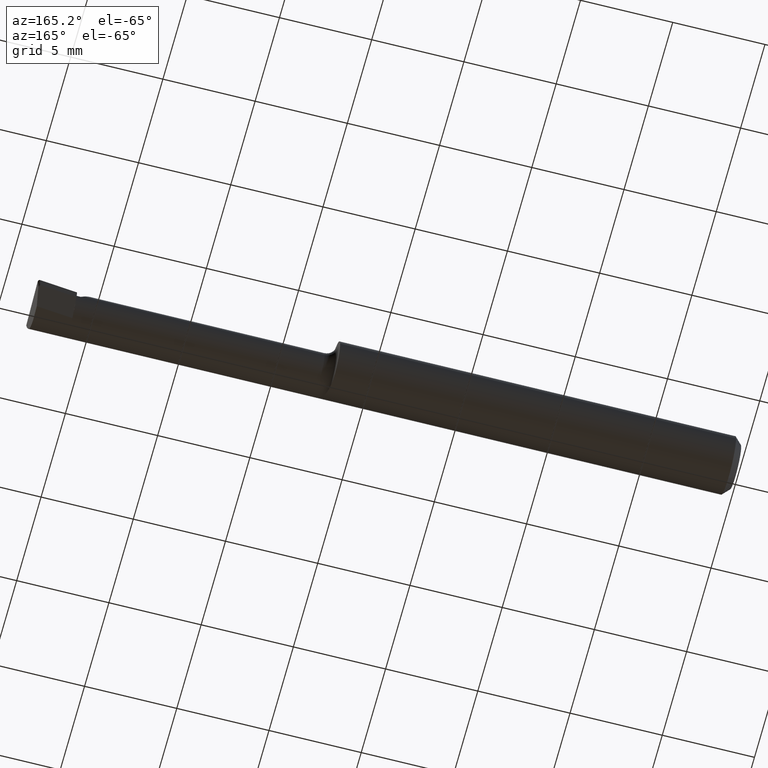
[diagram: clean part render]
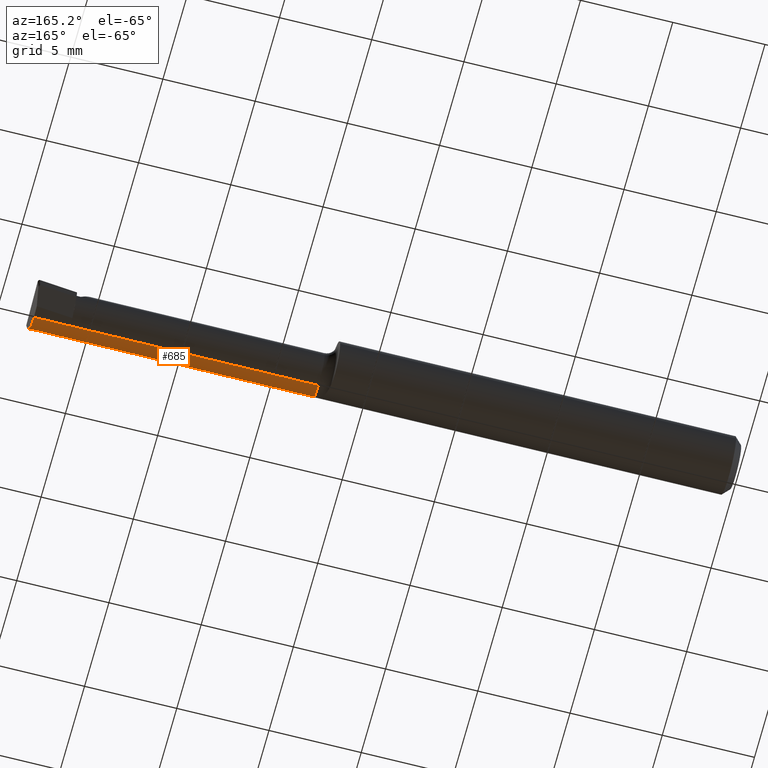
[diagram: same view with one face highlighted and labeled with its STEP entity id]
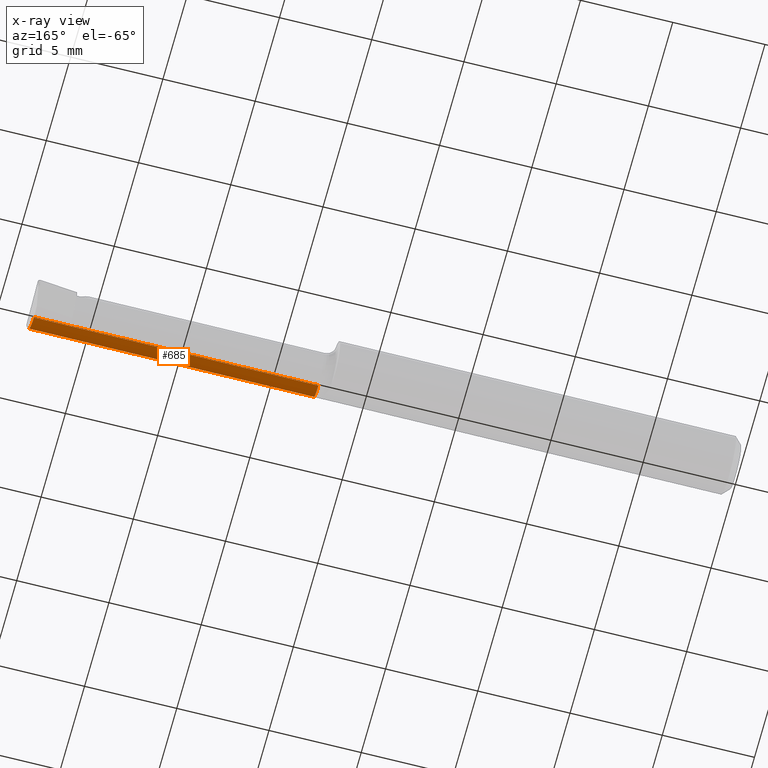
[diagram: x-ray of the same camera — body ghosted, the highlighted face saturated]
A machine part, auxiliary view. The second image highlights one B-rep face of the part: STEP entity #685.
The next image is the same camera in x-ray: the body ghosted, the highlighted face saturated — about 0% of this face is hidden behind the body in this view.
In plain terms, the highlighted cylindrical surface (edge-blend (fillet) strip) has radius 1.2205 mm, axis along (-1, -0, -0).
Its self-contained STEP definition (entity closure, byte-faithful):
#31 = VERTEX_POINT ( 'NONE', #773 ) ;
#34 = CARTESIAN_POINT ( 'NONE',  ( 0.0000000000000000000, -0.01839999999999999275, -0.04804999999999996774 ) ) ;
#40 = CARTESIAN_POINT ( 'NONE',  ( 1.150000000000000133, -0.05210000000000008374, -0.03425072991922931825 ) ) ;
#67 = FACE_OUTER_BOUND ( 'NONE', #173, .T. ) ;
#85 = CARTESIAN_POINT ( 'NONE',  ( 0.8850000000000001199, -0.05210000000000019477, -0.03425072991922917254 ) ) ;
#98 = DIRECTION ( 'NONE',  ( -1.000000000000000000, -0.0000000000000000000, -0.0000000000000000000 ) ) ;
#106 = VECTOR ( 'NONE', #409, 39.37007874015748143 ) ;
#125 = VERTEX_POINT ( 'NONE', #266 ) ;
#130 = VERTEX_POINT ( 'NONE', #85 ) ;
#167 = CARTESIAN_POINT ( 'NONE',  ( 1.500000000000000222, -0.01839999999999999969, -0.04804999999999998855 ) ) ;
#173 = EDGE_LOOP ( 'NONE', ( #254, #519, #188, #449, #210 ) ) ;
#188 = ORIENTED_EDGE ( 'NONE', *, *, #680, .F. ) ;
#210 = ORIENTED_EDGE ( 'NONE', *, *, #716, .F. ) ;
#249 = CARTESIAN_POINT ( 'NONE',  ( 1.493233423732482024, -0.05210000000000008374, -0.03425072991922931825 ) ) ;
#254 = ORIENTED_EDGE ( 'NONE', *, *, #263, .F. ) ;
#260 = CARTESIAN_POINT ( 'NONE',  ( 1.493233423732482024, -0.05210000000000008374, -0.03425072991922931825 ) ) ;
#263 = EDGE_CURVE ( 'NONE', #125, #31, #291, .T. ) ;
#266 = CARTESIAN_POINT ( 'NONE',  ( 1.415000000000000036, -0.01839999999999999969, -0.04804999999999998855 ) ) ;
#291 = LINE ( 'NONE', #34, #106 ) ;
#304 = EDGE_CURVE ( 'NONE', #554, #130, #726, .T. ) ;
#336 = CARTESIAN_POINT ( 'NONE',  ( 0.8850000000000001199, -0.01839999999999999969, 0.0000000000000000000 ) ) ;
#341 = DIRECTION ( 'NONE',  ( -1.000000000000000000, -0.0000000000000000000, -0.0000000000000000000 ) ) ;
#344 = DIRECTION ( 'NONE',  ( 0.0000000000000000000, 0.0000000000000000000, 1.000000000000000000 ) ) ;
#354 = CYLINDRICAL_SURFACE ( 'NONE', #673, 0.04804999999999996774 ) ;
#389 =( BOUNDED_CURVE ( )  B_SPLINE_CURVE ( 3, ( #260, #575, #658, #602 ),
 .UNSPECIFIED., .F., .T. ) 
 B_SPLINE_CURVE_WITH_KNOTS ( ( 4, 4 ),
 ( 5.715941252449188603, 6.493234751459777243 ),
 .UNSPECIFIED. ) 
 CURVE ( )  GEOMETRIC_REPRESENTATION_ITEM ( )  RATIONAL_B_SPLINE_CURVE ( ( 1.000000000000000000, 0.9502818019828906948, 0.9502818019828906948, 1.000000000000000000 ) ) 
 REPRESENTATION_ITEM ( '' )  );
#409 = DIRECTION ( 'NONE',  ( -1.000000000000000000, -0.0000000000000000000, -0.0000000000000000000 ) ) ;
#449 = ORIENTED_EDGE ( 'NONE', *, *, #304, .T. ) ;
#473 = LINE ( 'NONE', #167, #625 ) ;
#502 = AXIS2_PLACEMENT_3D ( 'NONE', #336, #341, #344 ) ;
#519 = ORIENTED_EDGE ( 'NONE', *, *, #782, .F. ) ;
#535 = VERTEX_POINT ( 'NONE', #732 ) ;
#541 = VECTOR ( 'NONE', #98, 39.37007874015748143 ) ;
#542 = DIRECTION ( 'NONE',  ( -1.000000000000000000, 5.691349986800549142E-18, -0.0000000000000000000 ) ) ;
#554 = VERTEX_POINT ( 'NONE', #249 ) ;
#575 = CARTESIAN_POINT ( 'NONE',  ( 1.492371467082626468, -0.04299473640227069460, -0.04320958667840188450 ) ) ;
#602 = CARTESIAN_POINT ( 'NONE',  ( 1.492420971165606458, -0.01839999999999999969, -0.04804999999999998855 ) ) ;
#625 = VECTOR ( 'NONE', #542, 39.37007874015748143 ) ;
#647 = DIRECTION ( 'NONE',  ( -1.000000000000000000, -0.0000000000000000000, -0.0000000000000000000 ) ) ;
#651 = CARTESIAN_POINT ( 'NONE',  ( 0.0000000000000000000, -0.01839999999999999969, 0.0000000000000000000 ) ) ;
#658 = CARTESIAN_POINT ( 'NONE',  ( 1.492086480543131755, -0.03117368152160948647, -0.04804999999999996080 ) ) ;
#673 = AXIS2_PLACEMENT_3D ( 'NONE', #651, #647, #719 ) ;
#680 = EDGE_CURVE ( 'NONE', #554, #535, #389, .T. ) ;
#683 = CIRCLE ( 'NONE', #502, 0.04804999999999993304 ) ;
#685 = ADVANCED_FACE ( 'NONE', ( #67 ), #354, .T. ) ;
#716 = EDGE_CURVE ( 'NONE', #31, #130, #683, .T. ) ;
#719 = DIRECTION ( 'NONE',  ( 0.0000000000000000000, 0.0000000000000000000, 1.000000000000000000 ) ) ;
#726 = LINE ( 'NONE', #40, #541 ) ;
#732 = CARTESIAN_POINT ( 'NONE',  ( 1.492420971165606458, -0.01839999999999999969, -0.04804999999999998855 ) ) ;
#773 = CARTESIAN_POINT ( 'NONE',  ( 0.8850000000000001199, -0.01839999999999999275, -0.04804999999999993304 ) ) ;
#782 = EDGE_CURVE ( 'NONE', #535, #125, #473, .T. ) ;